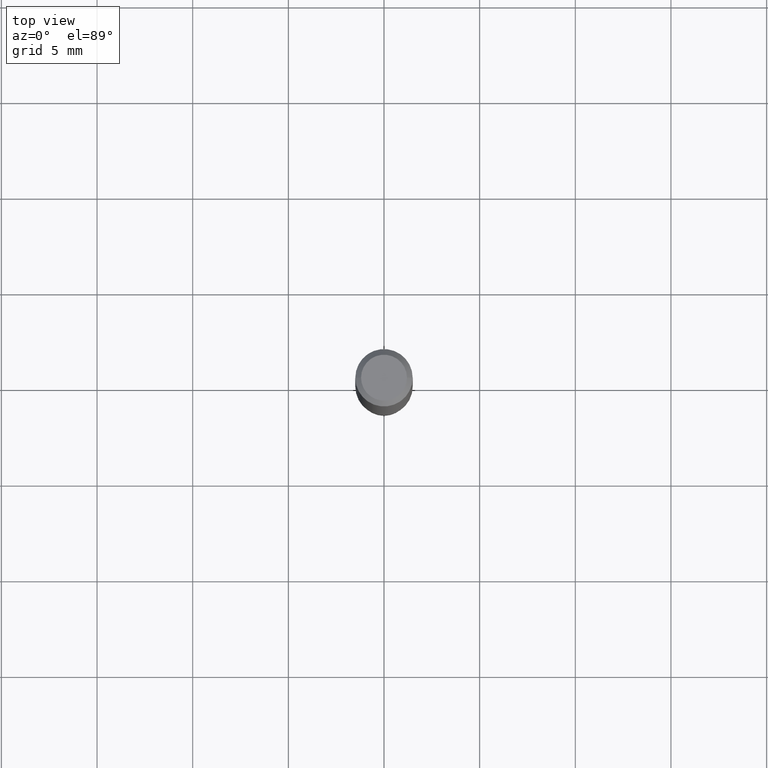
[diagram: clean part render]
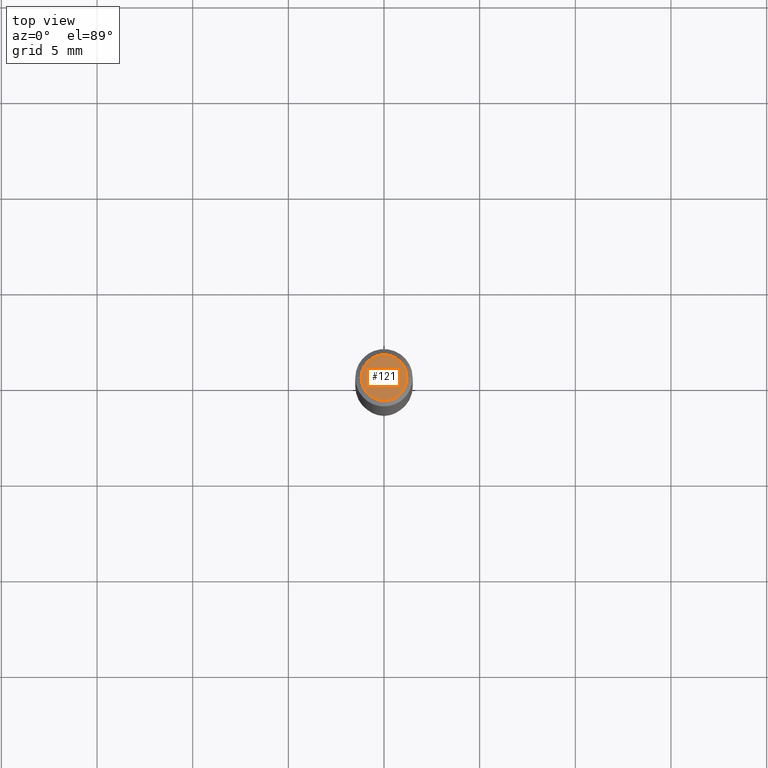
[diagram: same view with one face highlighted and labeled with its STEP entity id]
A machine part, top view. The second image highlights one B-rep face of the part: STEP entity #121.
In plain terms, the highlighted planar face has unit normal (0, -0, -1).
Its self-contained STEP definition (entity closure, byte-faithful):
#11 = DIRECTION ( 'NONE',  ( -1.000000000000000000, 6.982962677686265922E-15, -4.876176775795935793E-29 ) ) ;
#58 = DIRECTION ( 'NONE',  ( -2.445468806185136597E-29, 3.491481338843145583E-15, 1.000000000000000000 ) ) ;
#63 = ORIENTED_EDGE ( 'NONE', *, *, #304, .T. ) ;
#102 = EDGE_LOOP ( 'NONE', ( #63, #289 ) ) ;
#121 = ADVANCED_FACE ( 'NONE', ( #263 ), #418, .F. ) ;
#178 = DIRECTION ( 'NONE',  ( 1.000000000000000000, -6.982962677686266711E-15, 4.876185090822587894E-29 ) ) ;
#208 = VERTEX_POINT ( 'NONE', #312 ) ;
#236 = AXIS2_PLACEMENT_3D ( 'NONE', #477, #487, #178 ) ;
#263 = FACE_OUTER_BOUND ( 'NONE', #102, .T. ) ;
#269 = AXIS2_PLACEMENT_3D ( 'NONE', #317, #274, #11 ) ;
#274 = DIRECTION ( 'NONE',  ( 2.438088387897960049E-29, -3.491481338843145188E-15, -1.000000000000000000 ) ) ;
#289 = ORIENTED_EDGE ( 'NONE', *, *, #441, .T. ) ;
#304 = EDGE_CURVE ( 'NONE', #443, #208, #437, .T. ) ;
#312 = CARTESIAN_POINT ( 'NONE',  ( 0.04724000000000000421, -3.852183633974369345E-16, -3.380025165621689721E-19 ) ) ;
#317 = CARTESIAN_POINT ( 'NONE',  ( 4.132873053354867254E-48, -5.900647395337818946E-34, -1.690012582823346072E-19 ) ) ;
#327 = DIRECTION ( 'NONE',  ( 1.000000000000000000, -6.982962677686266711E-15, 4.876185090822587894E-29 ) ) ;
#379 = CIRCLE ( 'NONE', #415, 0.04724000000000000421 ) ;
#404 = CARTESIAN_POINT ( 'NONE',  ( -0.04724000000000000421, 3.504923541997677355E-16, -3.380025165670481712E-19 ) ) ;
#412 = CARTESIAN_POINT ( 'NONE',  ( 8.265746106709734507E-48, -1.180129479067563789E-33, -3.380025165646692144E-19 ) ) ;
#415 = AXIS2_PLACEMENT_3D ( 'NONE', #412, #58, #327 ) ;
#418 = PLANE ( 'NONE',  #269 ) ;
#437 = CIRCLE ( 'NONE', #236, 0.04724000000000000421 ) ;
#441 = EDGE_CURVE ( 'NONE', #208, #443, #379, .T. ) ;
#443 = VERTEX_POINT ( 'NONE', #404 ) ;
#477 = CARTESIAN_POINT ( 'NONE',  ( 8.265746106709734507E-48, -1.180129479067563789E-33, -3.380025165646692144E-19 ) ) ;
#487 = DIRECTION ( 'NONE',  ( -2.445468806185136597E-29, 3.491481338843145583E-15, 1.000000000000000000 ) ) ;